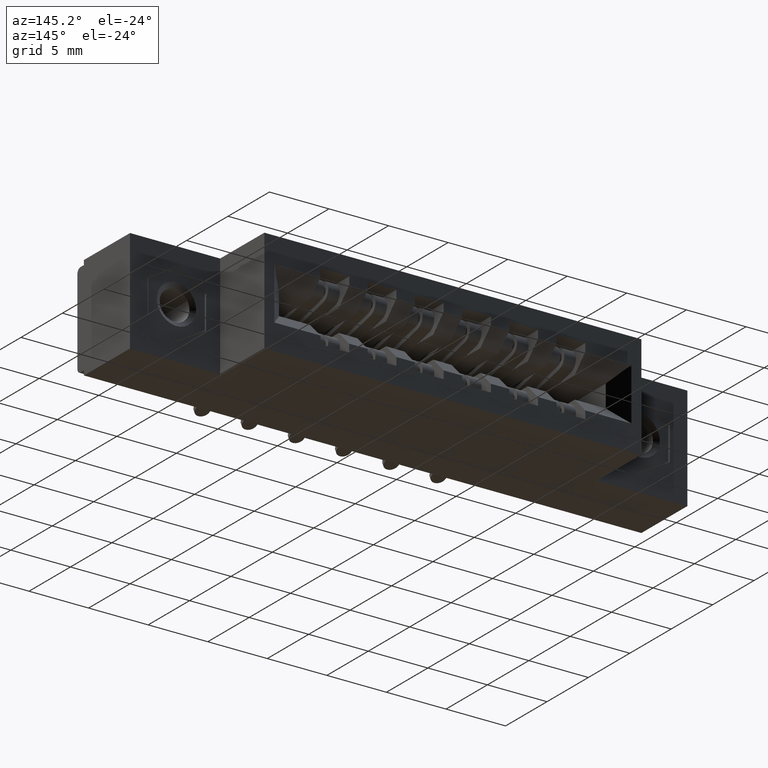
[diagram: clean part render]
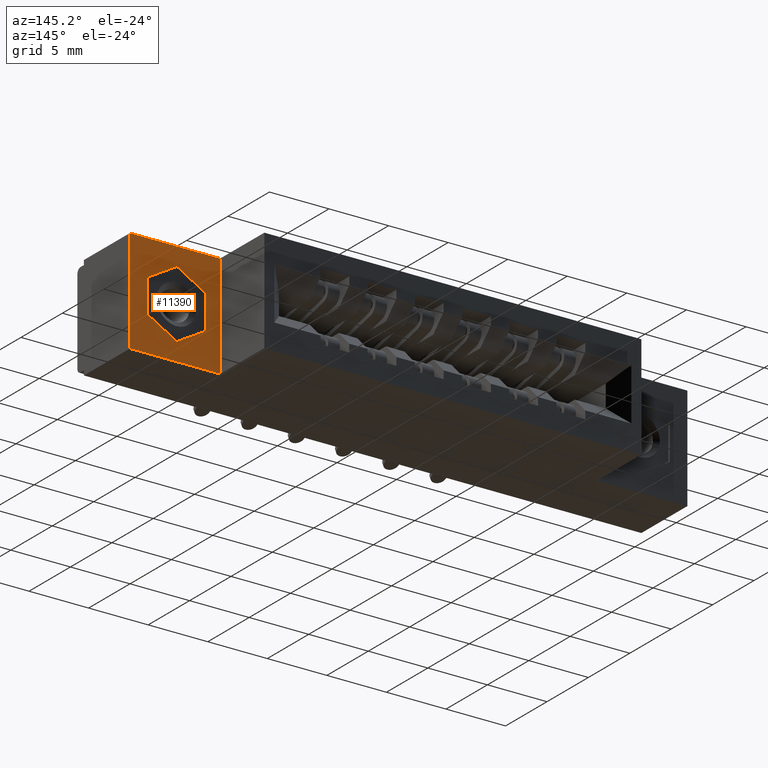
[diagram: same view with one face highlighted and labeled with its STEP entity id]
A machine part, auxiliary view. The second image highlights one B-rep face of the part: STEP entity #11390.
In plain terms, the highlighted planar face has unit normal (0, -1, 0).
Its self-contained STEP definition (entity closure, byte-faithful):
#170 = CARTESIAN_POINT ( 'NONE',  ( 1.842000000000000700, 0.2500000000000000600, 0.0000000000000000000 ) ) ;
#455 = DIRECTION ( 'NONE',  ( 9.806631136956690200E-015, -0.0000000000000000000, 1.000000000000000000 ) ) ;
#1086 = EDGE_LOOP ( 'NONE', ( #9754, #1919, #11034, #10587, #6669, #8954 ) ) ;
#1383 = EDGE_CURVE ( 'NONE', #1791, #11881, #5792, .T. ) ;
#1401 = DIRECTION ( 'NONE',  ( 1.000000000000000000, -0.0000000000000000000, -0.0000000000000000000 ) ) ;
#1475 = ORIENTED_EDGE ( 'NONE', *, *, #7521, .T. ) ;
#1791 = VERTEX_POINT ( 'NONE', #5509 ) ;
#1809 = CARTESIAN_POINT ( 'NONE',  ( 1.783500000000000300, 0.2500000000000000600, -0.1157856990232011000 ) ) ;
#1895 = VECTOR ( 'NONE', #7460, 39.37007874015748900 ) ;
#1919 = ORIENTED_EDGE ( 'NONE', *, *, #10320, .F. ) ;
#2011 = VERTEX_POINT ( 'NONE', #10370 ) ;
#2073 = VERTEX_POINT ( 'NONE', #9525 ) ;
#2101 = DIRECTION ( 'NONE',  ( 0.0000000000000000000, 0.0000000000000000000, -1.000000000000000000 ) ) ;
#2173 = DIRECTION ( 'NONE',  ( 0.8660254037844371500, -0.0000000000000000000, 0.5000000000000023300 ) ) ;
#2188 = DIRECTION ( 'NONE',  ( 0.0000000000000000000, -1.000000000000000000, -0.0000000000000000000 ) ) ;
#3208 = VECTOR ( 'NONE', #6624, 39.37007874015748900 ) ;
#3216 = CARTESIAN_POINT ( 'NONE',  ( 1.687000000000000900, 0.2500000000000000600, -0.06007139804640229700 ) ) ;
#3361 = VECTOR ( 'NONE', #11453, 39.37007874015748900 ) ;
#3727 = EDGE_CURVE ( 'NONE', #9125, #4680, #10690, .T. ) ;
#3790 = FACE_BOUND ( 'NONE', #1086, .T. ) ;
#3880 = CARTESIAN_POINT ( 'NONE',  ( 1.842000000000000700, 0.2500000000000000600, -0.3430000000000000300 ) ) ;
#4121 = FACE_OUTER_BOUND ( 'NONE', #7818, .T. ) ;
#4381 = VECTOR ( 'NONE', #10557, 39.37007874015748100 ) ;
#4443 = VECTOR ( 'NONE', #2173, 39.37007874015748900 ) ;
#4535 = EDGE_CURVE ( 'NONE', #4680, #1791, #9319, .T. ) ;
#4680 = VERTEX_POINT ( 'NONE', #10009 ) ;
#5065 = LINE ( 'NONE', #6167, #10582 ) ;
#5222 = CARTESIAN_POINT ( 'NONE',  ( 1.590500000000001600, 0.2500000000000000600, -0.1157856990232011700 ) ) ;
#5303 = VERTEX_POINT ( 'NONE', #8497 ) ;
#5509 = CARTESIAN_POINT ( 'NONE',  ( 1.687000000000000900, 0.2500000000000000600, -0.2829286019535977600 ) ) ;
#5792 = LINE ( 'NONE', #7738, #3361 ) ;
#5896 = EDGE_CURVE ( 'NONE', #5303, #7307, #12236, .T. ) ;
#6124 = LINE ( 'NONE', #7487, #8047 ) ;
#6167 = CARTESIAN_POINT ( 'NONE',  ( 1.842000000000000700, 0.2500000000000000600, 0.0000000000000000000 ) ) ;
#6624 = DIRECTION ( 'NONE',  ( -0.8660254037844370400, -0.0000000000000000000, -0.5000000000000026600 ) ) ;
#6669 = ORIENTED_EDGE ( 'NONE', *, *, #3727, .F. ) ;
#6830 = DIRECTION ( 'NONE',  ( 0.0000000000000000000, 0.0000000000000000000, -1.000000000000000000 ) ) ;
#6834 = CARTESIAN_POINT ( 'NONE',  ( 1.544000000000000700, 0.2500000000000000600, 0.0000000000000000000 ) ) ;
#6980 = LINE ( 'NONE', #3216, #4443 ) ;
#7307 = VERTEX_POINT ( 'NONE', #11382 ) ;
#7323 = CARTESIAN_POINT ( 'NONE',  ( 1.783500000000000300, 0.2500000000000000600, -0.1157856990232011000 ) ) ;
#7460 = DIRECTION ( 'NONE',  ( 0.8660254037844376000, -0.0000000000000000000, -0.5000000000000018900 ) ) ;
#7487 = CARTESIAN_POINT ( 'NONE',  ( 1.544000000000000700, 0.2500000000000000600, 0.0000000000000000000 ) ) ;
#7521 = EDGE_CURVE ( 'NONE', #2073, #7794, #5065, .T. ) ;
#7714 = EDGE_CURVE ( 'NONE', #7307, #2073, #6124, .T. ) ;
#7738 = CARTESIAN_POINT ( 'NONE',  ( 1.590500000000000500, 0.2500000000000000600, -0.2272143009767989800 ) ) ;
#7794 = VERTEX_POINT ( 'NONE', #7815 ) ;
#7815 = CARTESIAN_POINT ( 'NONE',  ( 1.842000000000000700, 0.2500000000000000600, 0.0000000000000000000 ) ) ;
#7818 = EDGE_LOOP ( 'NONE', ( #1475, #9200, #11472, #8617 ) ) ;
#7861 = VECTOR ( 'NONE', #455, 39.37007874015748100 ) ;
#8047 = VECTOR ( 'NONE', #8474, 39.37007874015748100 ) ;
#8176 = VERTEX_POINT ( 'NONE', #8602 ) ;
#8474 = DIRECTION ( 'NONE',  ( -0.0000000000000000000, -0.0000000000000000000, 1.000000000000000000 ) ) ;
#8497 = CARTESIAN_POINT ( 'NONE',  ( 1.842000000000000700, 0.2500000000000000600, -0.3430000000000000300 ) ) ;
#8602 = CARTESIAN_POINT ( 'NONE',  ( 1.687000000000000900, 0.2500000000000000600, -0.06007139804640229700 ) ) ;
#8609 = EDGE_CURVE ( 'NONE', #8176, #9125, #11577, .T. ) ;
#8617 = ORIENTED_EDGE ( 'NONE', *, *, #7714, .T. ) ;
#8722 = EDGE_CURVE ( 'NONE', #7794, #5303, #9197, .T. ) ;
#8848 = CARTESIAN_POINT ( 'NONE',  ( 1.783500000000000300, 0.2500000000000000600, -0.2272143009767988400 ) ) ;
#8954 = ORIENTED_EDGE ( 'NONE', *, *, #8609, .F. ) ;
#9125 = VERTEX_POINT ( 'NONE', #7323 ) ;
#9177 = LINE ( 'NONE', #5222, #7861 ) ;
#9197 = LINE ( 'NONE', #170, #11422 ) ;
#9200 = ORIENTED_EDGE ( 'NONE', *, *, #8722, .T. ) ;
#9319 = LINE ( 'NONE', #12285, #3208 ) ;
#9348 = VECTOR ( 'NONE', #10660, 39.37007874015748100 ) ;
#9525 = CARTESIAN_POINT ( 'NONE',  ( 1.544000000000000700, 0.2500000000000000600, 0.0000000000000000000 ) ) ;
#9754 = ORIENTED_EDGE ( 'NONE', *, *, #10200, .F. ) ;
#10009 = CARTESIAN_POINT ( 'NONE',  ( 1.783500000000000300, 0.2500000000000000600, -0.2272143009767988400 ) ) ;
#10200 = EDGE_CURVE ( 'NONE', #2011, #8176, #6980, .T. ) ;
#10320 = EDGE_CURVE ( 'NONE', #11881, #2011, #9177, .T. ) ;
#10370 = CARTESIAN_POINT ( 'NONE',  ( 1.590500000000001600, 0.2500000000000000600, -0.1157856990232012000 ) ) ;
#10557 = DIRECTION ( 'NONE',  ( -1.000000000000000000, 0.0000000000000000000, 0.0000000000000000000 ) ) ;
#10582 = VECTOR ( 'NONE', #1401, 39.37007874015748100 ) ;
#10587 = ORIENTED_EDGE ( 'NONE', *, *, #4535, .F. ) ;
#10660 = DIRECTION ( 'NONE',  ( -0.0000000000000000000, -0.0000000000000000000, -1.000000000000000000 ) ) ;
#10690 = LINE ( 'NONE', #8848, #9348 ) ;
#11034 = ORIENTED_EDGE ( 'NONE', *, *, #1383, .F. ) ;
#11120 = AXIS2_PLACEMENT_3D ( 'NONE', #6834, #2188, #2101 ) ;
#11239 = CARTESIAN_POINT ( 'NONE',  ( 1.590500000000000500, 0.2500000000000000600, -0.2272143009767989800 ) ) ;
#11382 = CARTESIAN_POINT ( 'NONE',  ( 1.544000000000000700, 0.2500000000000000600, -0.3430000000000000300 ) ) ;
#11390 = ADVANCED_FACE ( 'NONE', ( #3790, #4121 ), #11547, .F. ) ;
#11422 = VECTOR ( 'NONE', #6830, 39.37007874015748100 ) ;
#11453 = DIRECTION ( 'NONE',  ( -0.8660254037844400400, -0.0000000000000000000, 0.4999999999999973900 ) ) ;
#11472 = ORIENTED_EDGE ( 'NONE', *, *, #5896, .T. ) ;
#11547 = PLANE ( 'NONE',  #11120 ) ;
#11577 = LINE ( 'NONE', #1809, #1895 ) ;
#11881 = VERTEX_POINT ( 'NONE', #11239 ) ;
#12236 = LINE ( 'NONE', #3880, #4381 ) ;
#12285 = CARTESIAN_POINT ( 'NONE',  ( 1.687000000000000900, 0.2500000000000000600, -0.2829286019535977600 ) ) ;